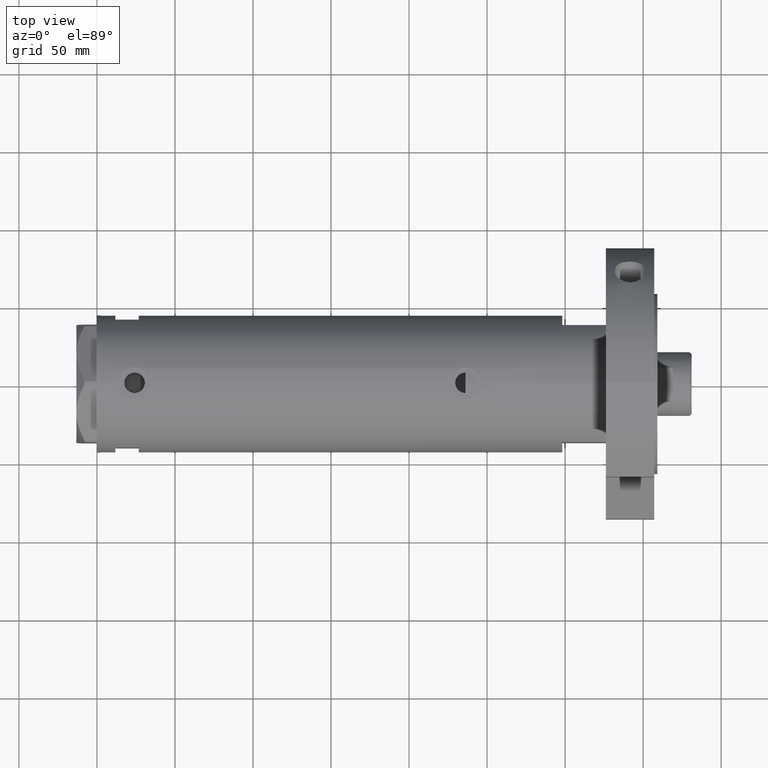
[diagram: clean part render]
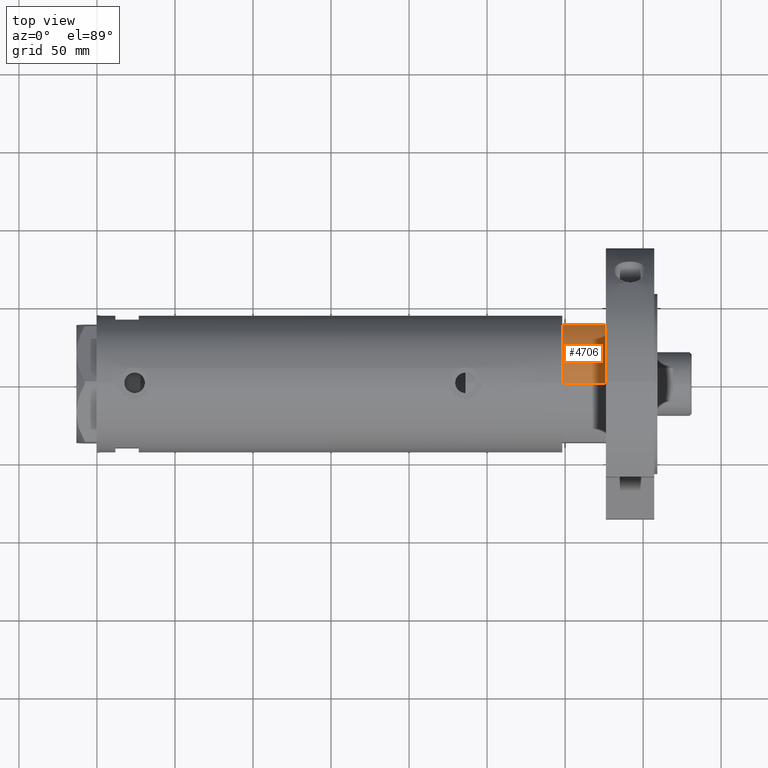
[diagram: same view with one face highlighted and labeled with its STEP entity id]
A machine part, top view. The second image highlights one B-rep face of the part: STEP entity #4706.
In plain terms, the highlighted cylindrical surface (partial cylindrical patch) has radius 44 mm, axis along (-1, -0, 0).
Its self-contained STEP definition (entity closure, byte-faithful):
#473 = DIRECTION ( 'NONE',  ( -0.000000000000000000, -0.000000000000000000, 1.000000000000000000 ) ) ;
#561 = VERTEX_POINT ( 'NONE', #6316 ) ;
#699 = VECTOR ( 'NONE', #473, 1000.000000000000000 ) ;
#1011 = CARTESIAN_POINT ( 'NONE',  ( -23.01629857296780557, 37.50000000000000000, 0.000000000000000000 ) ) ;
#1160 = DIRECTION ( 'NONE',  ( 0.000000000000000000, 0.000000000000000000, 1.000000000000000000 ) ) ;
#1367 = EDGE_CURVE ( 'NONE', #5018, #7362, #4677, .T. ) ;
#1407 = AXIS2_PLACEMENT_3D ( 'NONE', #5379, #2994, #4836 ) ;
#1666 = CARTESIAN_POINT ( 'NONE',  ( 0.000000000000000000, 0.000000000000000000, 27.89999999999999858 ) ) ;
#1939 = AXIS2_PLACEMENT_3D ( 'NONE', #4212, #1160, #3498 ) ;
#2043 = ORIENTED_EDGE ( 'NONE', *, *, #1367, .T. ) ;
#2615 = FACE_OUTER_BOUND ( 'NONE', #6677, .T. ) ;
#2673 = CIRCLE ( 'NONE', #1939, 44.00000000000000000 ) ;
#2750 = VERTEX_POINT ( 'NONE', #7017 ) ;
#2933 = ORIENTED_EDGE ( 'NONE', *, *, #5449, .F. ) ;
#2994 = DIRECTION ( 'NONE',  ( 0.000000000000000000, 0.000000000000000000, 1.000000000000000000 ) ) ;
#2995 = DIRECTION ( 'NONE',  ( -0.000000000000000000, -0.000000000000000000, -1.000000000000000000 ) ) ;
#3175 = EDGE_CURVE ( 'NONE', #5018, #561, #3304, .T. ) ;
#3304 = LINE ( 'NONE', #1011, #699 ) ;
#3498 = DIRECTION ( 'NONE',  ( 1.000000000000000000, 0.000000000000000000, 0.000000000000000000 ) ) ;
#4212 = CARTESIAN_POINT ( 'NONE',  ( 0.000000000000000000, 0.000000000000000000, 27.89999999999999858 ) ) ;
#4563 = DIRECTION ( 'NONE',  ( -0.000000000000000000, -0.000000000000000000, -1.000000000000000000 ) ) ;
#4631 = ORIENTED_EDGE ( 'NONE', *, *, #4854, .F. ) ;
#4677 = CIRCLE ( 'NONE', #1407, 44.00000000000000000 ) ;
#4706 = ADVANCED_FACE ( 'NONE', ( #2615 ), #6843, .T. ) ;
#4817 = CARTESIAN_POINT ( 'NONE',  ( -23.01629857296780557, 37.50000000000000000, 0.000000000000000000 ) ) ;
#4836 = DIRECTION ( 'NONE',  ( 1.000000000000000000, 0.000000000000000000, 0.000000000000000000 ) ) ;
#4854 = EDGE_CURVE ( 'NONE', #2750, #7362, #7451, .T. ) ;
#4926 = ORIENTED_EDGE ( 'NONE', *, *, #3175, .F. ) ;
#5018 = VERTEX_POINT ( 'NONE', #4817 ) ;
#5379 = CARTESIAN_POINT ( 'NONE',  ( 0.000000000000000000, 0.000000000000000000, 0.000000000000000000 ) ) ;
#5449 = EDGE_CURVE ( 'NONE', #561, #2750, #2673, .T. ) ;
#5577 = VECTOR ( 'NONE', #4563, 1000.000000000000000 ) ;
#5813 = DIRECTION ( 'NONE',  ( -1.000000000000000000, 0.000000000000000000, 0.000000000000000000 ) ) ;
#6316 = CARTESIAN_POINT ( 'NONE',  ( -23.01629857296780557, 37.50000000000000000, 27.89999999999999858 ) ) ;
#6677 = EDGE_LOOP ( 'NONE', ( #4631, #2933, #4926, #2043 ) ) ;
#6804 = AXIS2_PLACEMENT_3D ( 'NONE', #1666, #2995, #5813 ) ;
#6843 = CYLINDRICAL_SURFACE ( 'NONE', #6804, 44.00000000000000000 ) ;
#7017 = CARTESIAN_POINT ( 'NONE',  ( -44.00000000000000000, 0.000000000000000000, 27.89999999999999858 ) ) ;
#7362 = VERTEX_POINT ( 'NONE', #7532 ) ;
#7409 = CARTESIAN_POINT ( 'NONE',  ( -44.00000000000000000, 0.000000000000000000, 27.89999999999999858 ) ) ;
#7451 = LINE ( 'NONE', #7409, #5577 ) ;
#7532 = CARTESIAN_POINT ( 'NONE',  ( -44.00000000000000000, 0.000000000000000000, 0.000000000000000000 ) ) ;